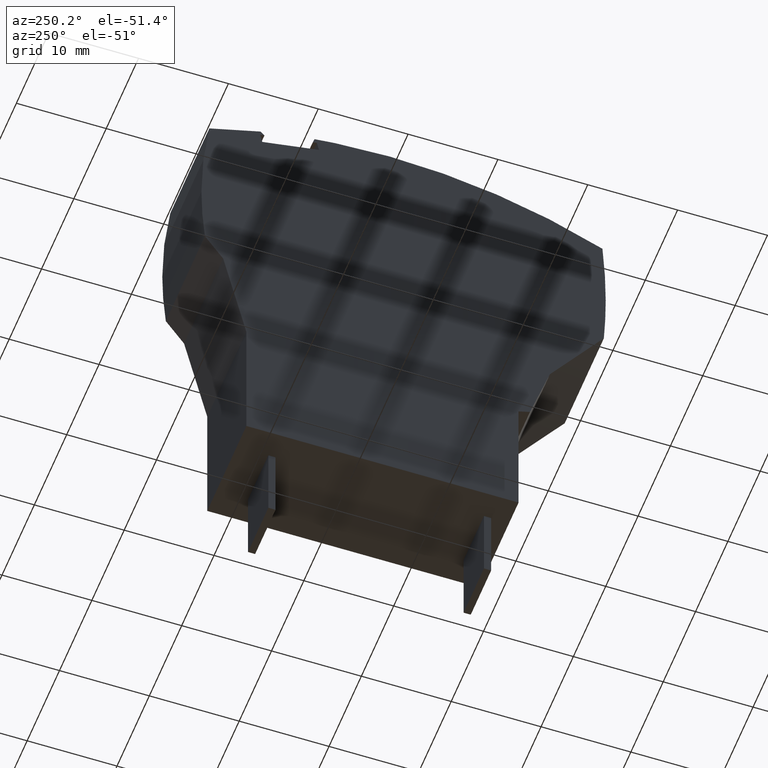
[diagram: clean part render]
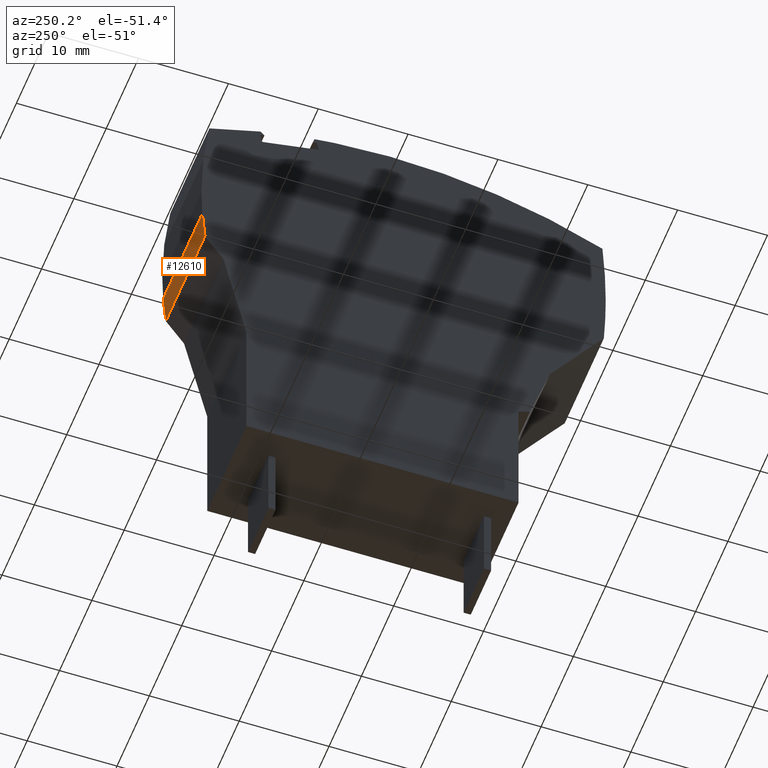
[diagram: same view with one face highlighted and labeled with its STEP entity id]
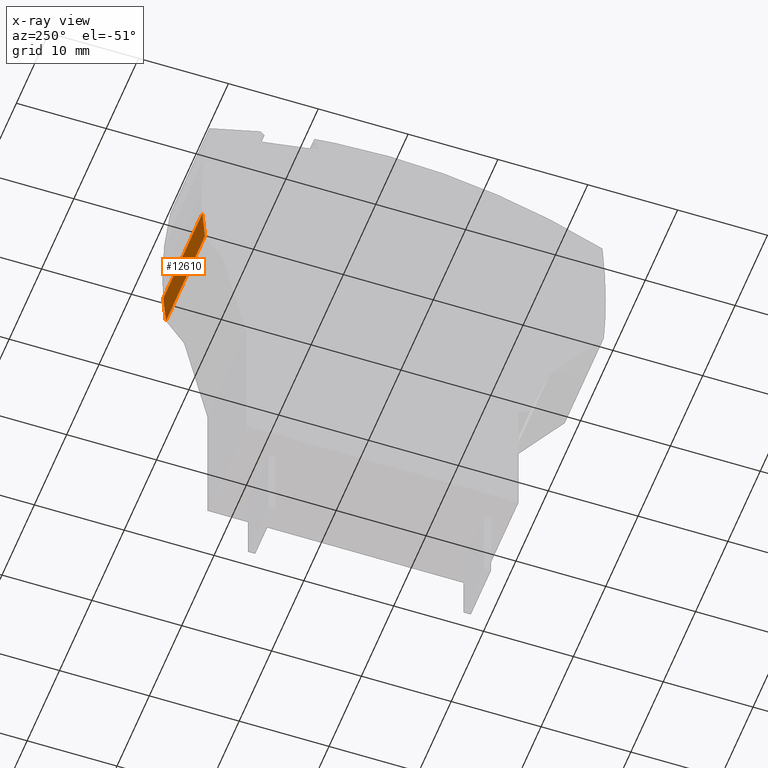
[diagram: x-ray of the same camera — body ghosted, the highlighted face saturated]
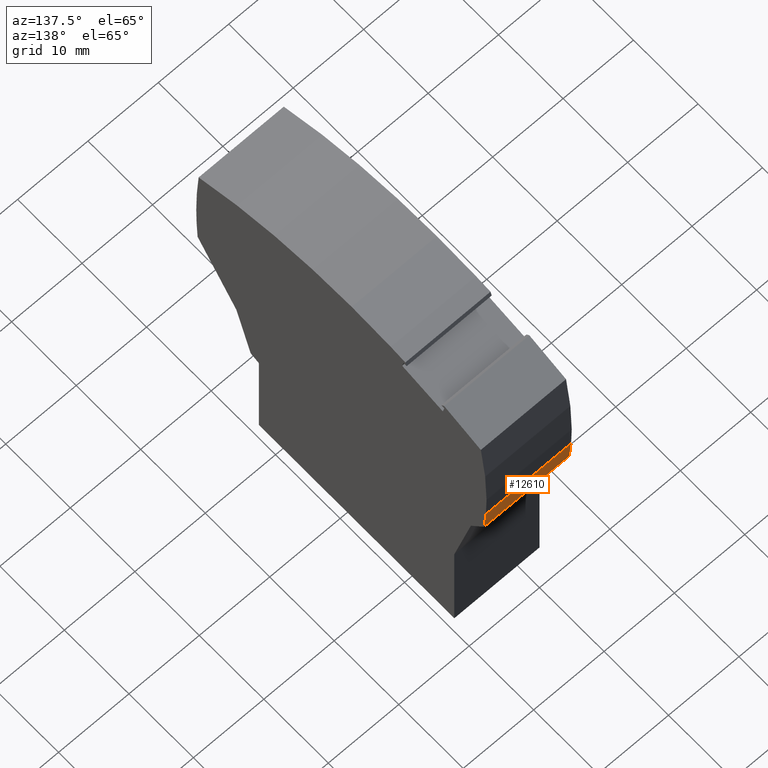
[diagram: same view with one face highlighted and labeled with its STEP entity id]
A machine part, auxiliary view. The second image highlights one B-rep face of the part: STEP entity #12610.
The next image is the same camera in x-ray: the body ghosted, the highlighted face saturated — about 0% of this face is hidden behind the body in this view.
A second angle (auxiliary view) of the same face is appended — the face is thin or edge-on in the first view.
In plain terms, the highlighted planar face has unit normal (0, 0.9968, -0.0801).
Its self-contained STEP definition (entity closure, byte-faithful):
#2200=CARTESIAN_POINT('',(-20.3274267066365,19.5023885348315,
53.5700000001206));
#2210=VERTEX_POINT('',#2200);
#2240=CARTESIAN_POINT('',(-20.6201615225842,23.1459765328589,
53.5700000001206));
#2250=DIRECTION('',(0.0800844049892403,-0.996788085842482,-0.));
#2260=VECTOR('',#2250,1.);
#2270=LINE('',#2240,#2260);
#2280=CARTESIAN_POINT('',(-20.6201615225842,23.1459765328589,
53.5700000001206));
#2290=VERTEX_POINT('',#2280);
#2300=EDGE_CURVE('',#2290,#2210,#2270,.T.);
#7530=CARTESIAN_POINT('',(-20.6201615225842,23.1459765328589,
53.5950000001206));
#7540=DIRECTION('',(0.,0.,-1.));
#7550=VECTOR('',#7540,1.);
#7560=LINE('',#7530,#7550);
#7570=CARTESIAN_POINT('',(-20.6201615225842,23.1459765328589,
41.4700000001206));
#7580=VERTEX_POINT('',#7570);
#7590=EDGE_CURVE('',#2290,#7580,#7560,.T.);
#7840=CARTESIAN_POINT('',(-20.3274267066363,19.5023885348288,
53.5950000001206));
#7850=DIRECTION('',(0.,0.,-1.));
#7860=VECTOR('',#7850,1.);
#7870=LINE('',#7840,#7860);
#7880=CARTESIAN_POINT('',(-20.3274267066365,19.5023885348315,
41.4700000001206));
#7890=VERTEX_POINT('',#7880);
#7900=EDGE_CURVE('',#2210,#7890,#7870,.T.);
#12450=CARTESIAN_POINT('',(-20.6201615225842,23.1459765328589,
53.5950000001206));
#12460=DIRECTION('',(-0.996788085842482,-0.0800844049892403,-0.));
#12470=DIRECTION('',(-0.0800844049892403,0.996788085842482,0.));
#12480=AXIS2_PLACEMENT_3D('',#12450,#12460,#12470);
#12490=PLANE('',#12480);
#12500=ORIENTED_EDGE('',*,*,#7900,.F.);
#12510=CARTESIAN_POINT('',(-20.6201615225842,23.1459765328589,
41.4700000001206));
#12520=DIRECTION('',(0.0800844049892403,-0.996788085842482,-0.));
#12530=VECTOR('',#12520,1.);
#12540=LINE('',#12510,#12530);
#12550=EDGE_CURVE('',#7580,#7890,#12540,.T.);
#12560=ORIENTED_EDGE('',*,*,#12550,.T.);
#12570=ORIENTED_EDGE('',*,*,#7590,.T.);
#12580=ORIENTED_EDGE('',*,*,#2300,.F.);
#12590=EDGE_LOOP('',(#12580,#12570,#12560,#12500));
#12600=FACE_OUTER_BOUND('',#12590,.T.);
#12610=ADVANCED_FACE('',(#12600),#12490,.T.);